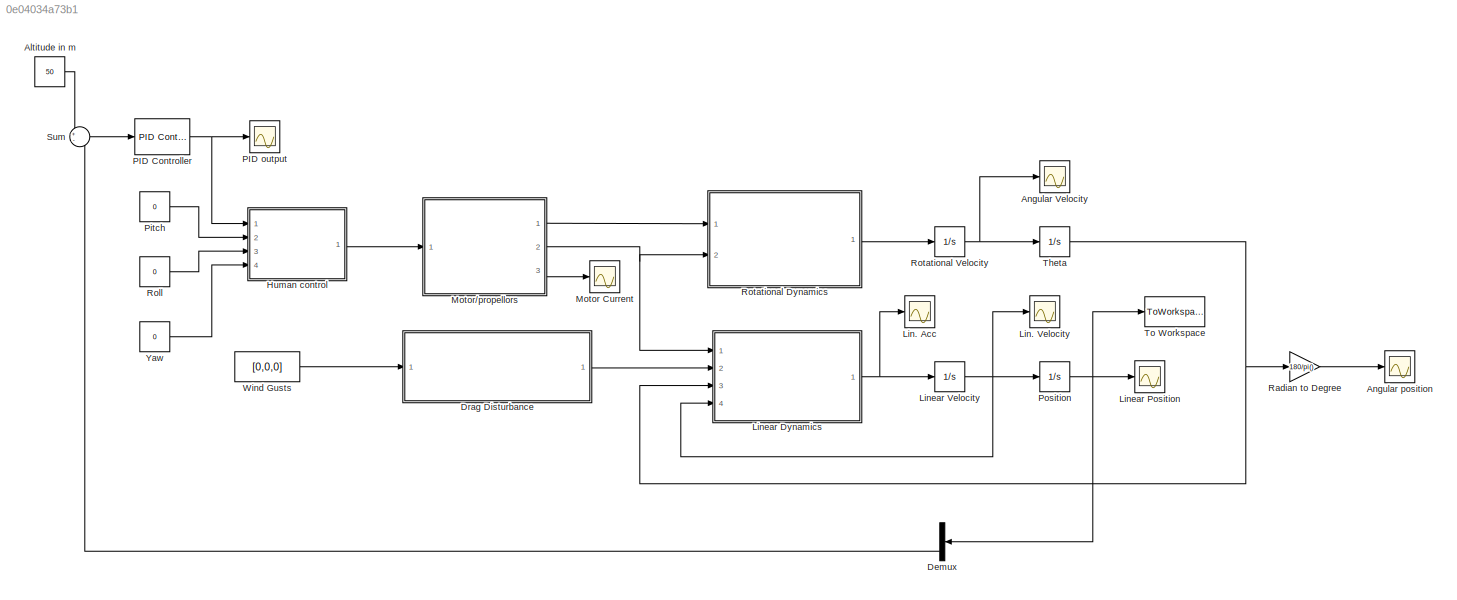
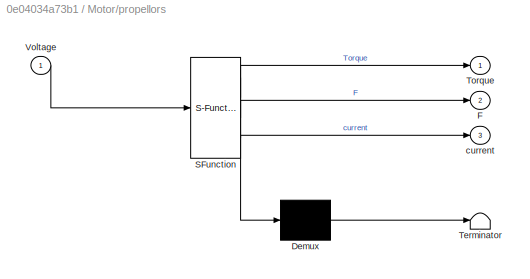
MODEL slx_0e04034a73b1
KIND model
CONFIG AbsTol = 1e-5
CONFIG EnableMultiTasking = off
CONFIG FixedStep = .01
CONFIG MaxStep = auto
CONFIG MinStep = auto
CONFIG RelTol = 1e-5
CONFIG SampleTimeConstraint = Unconstrained
CONFIG Solver = ode23s
CONFIG SolverName = ode23s
CONFIG StartTime = 0.0
CONFIG StopTime = 100
BLOCK [Constant] Altitude in m
  Value = 50
BLOCK [Scope] Angular Velocity
  Floating = off
  NumInputPorts = 1
  Ports = [1]
  ScopeSpecificationString = Simulink.scopes.TimeScopeBlockCfg('CurrentConfiguration', extmgr.ConfigurationSet(extmgr.Configuration('Core','General UI',true),extmgr.Configuration('Core','Source UI',true),extmgr.Configuration('Sources','WiredSimulink',true),extmgr.Configuration('Visuals','Time Domain',true,'SerializedDisplays',{struct('MinYLimReal','-0.0000035','MaxYLimReal','0.0000004','YLabelReal','','MinYLimMag','0.0000000'...<+1405ch>
BLOCK [Scope] Angular position
  Floating = off
  NumInputPorts = 1
  Ports = [1]
  ScopeSpecificationString = Simulink.scopes.TimeScopeBlockCfg('CurrentConfiguration', extmgr.ConfigurationSet(extmgr.Configuration('Core','General UI',true),extmgr.Configuration('Core','Source UI',true),extmgr.Configuration('Sources','WiredSimulink',true,'DataLoggingVariableName','ScopeData3'),extmgr.Configuration('Visuals','Time Domain',true,'SerializedDisplays',{struct('MinYLimReal','-0.02019','MaxYLimReal','0.00224','YLab...<+1419ch>
BLOCK [Demux] Demux
  DisplayOption = bar
  Outputs = 3
  Ports = [1, 3]
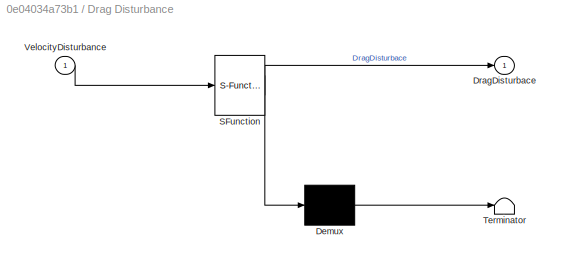
BLOCK [SubSystem] Drag Disturbance
  ErrorFcn = Stateflow.Translate.translate
  PermitHierarchicalResolution = ExplicitOnly
  Ports = [1, 1]
  RequestExecContextInheritance = off
  SFBlockType = MATLAB Function
  TreatAsAtomicUnit = on
BLOCK [Demux] Drag Disturbance/ Demux 
  Outputs = 1
  Ports = [1, 1]
BLOCK [S-Function] Drag Disturbance/ SFunction 
  EnableBusSupport = on
  FunctionName = sf_sfun
  PortCounts = [1 2]
  Ports = [1, 2]
  SFcnIsStateOwnerBlock = off
  SFunctionDeploymentMode = off
  Tag = Stateflow S-Function untitled 4
BLOCK [Terminator] Drag Disturbance/ Terminator 
BLOCK [Outport] Drag Disturbance/DragDisturbace
  IconDisplay = Port number
BLOCK [Inport] Drag Disturbance/VelocityDisturbance
  IconDisplay = Port number
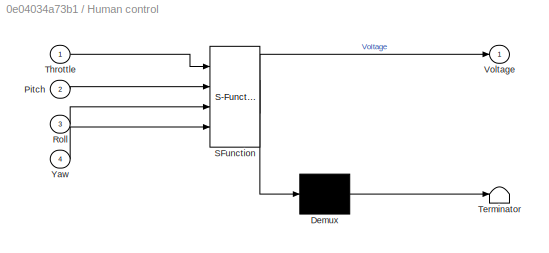
BLOCK [SubSystem] Human control
  ErrorFcn = Stateflow.Translate.translate
  PermitHierarchicalResolution = ExplicitOnly
  Ports = [4, 1]
  RequestExecContextInheritance = off
  SFBlockType = MATLAB Function
  TreatAsAtomicUnit = on
BLOCK [Demux] Human control/ Demux 
  Outputs = 1
  Ports = [1, 1]
BLOCK [S-Function] Human control/ SFunction 
  EnableBusSupport = on
  FunctionName = sf_sfun
  PortCounts = [4 2]
  Ports = [4, 2]
  SFcnIsStateOwnerBlock = off
  SFunctionDeploymentMode = off
  Tag = Stateflow S-Function untitled 5
BLOCK [Terminator] Human control/ Terminator 
BLOCK [Inport] Human control/Pitch
  IconDisplay = Port number
  Port = 2
BLOCK [Inport] Human control/Roll
  IconDisplay = Port number
  Port = 3
BLOCK [Inport] Human control/Throttle
  IconDisplay = Port number
BLOCK [Outport] Human control/Voltage
  IconDisplay = Port number
BLOCK [Inport] Human control/Yaw
  IconDisplay = Port number
  Port = 4
BLOCK [Scope] Lin. Acc 
  Floating = off
  NumInputPorts = 1
  Ports = [1]
  ScopeSpecificationString = Simulink.scopes.TimeScopeBlockCfg('CurrentConfiguration', extmgr.ConfigurationSet(extmgr.Configuration('Core','General UI',true),extmgr.Configuration('Core','Source UI',true),extmgr.Configuration('Sources','WiredSimulink',true,'DataLoggingVariableName','ScopeData5'),extmgr.Configuration('Visuals','Time Domain',true,'SerializedDisplays',{struct('MinYLimReal','-19.06271','MaxYLimReal','12.99887','YL...<+1449ch>
BLOCK [Scope] Lin. Velocity
  Floating = off
  NumInputPorts = 1
  Ports = [1]
  ScopeSpecificationString = Simulink.scopes.TimeScopeBlockCfg('CurrentConfiguration', extmgr.ConfigurationSet(extmgr.Configuration('Core','General UI',true),extmgr.Configuration('Core','Source UI',true),extmgr.Configuration('Sources','WiredSimulink',true,'DataLoggingVariableName','ScopeData1'),extmgr.Configuration('Visuals','Time Domain',true,'SerializedDisplays',{struct('MinYLimReal','-3.25308','MaxYLimReal','27.80287','YLa...<+1447ch>
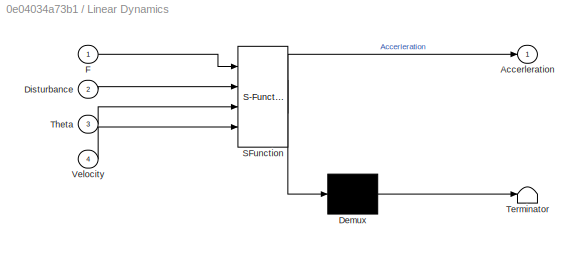
BLOCK [SubSystem] Linear Dynamics
  ErrorFcn = Stateflow.Translate.translate
  PermitHierarchicalResolution = ExplicitOnly
  Ports = [4, 1]
  RequestExecContextInheritance = off
  SFBlockType = MATLAB Function
  TreatAsAtomicUnit = on
BLOCK [Demux] Linear Dynamics/ Demux 
  Outputs = 1
  Ports = [1, 1]
BLOCK [S-Function] Linear Dynamics/ SFunction 
  EnableBusSupport = on
  FunctionName = sf_sfun
  PortCounts = [4 2]
  Ports = [4, 2]
  SFcnIsStateOwnerBlock = off
  SFunctionDeploymentMode = off
  Tag = Stateflow S-Function untitled 3
BLOCK [Terminator] Linear Dynamics/ Terminator 
BLOCK [Outport] Linear Dynamics/Accerleration
  IconDisplay = Port number
BLOCK [Inport] Linear Dynamics/Disturbance
  IconDisplay = Port number
  Port = 2
BLOCK [Inport] Linear Dynamics/F
  IconDisplay = Port number
BLOCK [Inport] Linear Dynamics/Theta
  IconDisplay = Port number
  Port = 3
BLOCK [Inport] Linear Dynamics/Velocity
  IconDisplay = Port number
  Port = 4
BLOCK [Scope] Linear Position
  Floating = off
  NumInputPorts = 1
  Ports = [1]
  ScopeSpecificationString = Simulink.scopes.TimeScopeBlockCfg('CurrentConfiguration', extmgr.ConfigurationSet(extmgr.Configuration('Core','General UI',true),extmgr.Configuration('Core','Source UI',true),extmgr.Configuration('Sources','WiredSimulink',true,'DataLoggingVariableName','ScopeData2'),extmgr.Configuration('Visuals','Time Domain',true,'SerializedDisplays',{struct('MinYLimReal','-11.94635','MaxYLimReal','56.87755','YL...<+1467ch>
BLOCK [Integrator] Linear Velocity
  Ports = [1, 1]
BLOCK [Scope] Motor Current
  Floating = off
  NumInputPorts = 1
  Ports = [1]
  ScopeSpecificationString = Simulink.scopes.TimeScopeBlockCfg('CurrentConfiguration', extmgr.ConfigurationSet(extmgr.Configuration('Core','General UI',true),extmgr.Configuration('Core','Source UI',true),extmgr.Configuration('Sources','WiredSimulink',true,'DataLoggingVariableName','ScopeData4'),extmgr.Configuration('Visuals','Time Domain',true,'SerializedDisplays',{struct('MinYLimReal','7.91109','MaxYLimReal','163.48136','YLa...<+1478ch>
BLOCK [SubSystem] Motor//propellors
  ErrorFcn = Stateflow.Translate.translate
  PermitHierarchicalResolution = ExplicitOnly
  Ports = [1, 3]
  RequestExecContextInheritance = off
  SFBlockType = MATLAB Function
  TreatAsAtomicUnit = on
BLOCK [Demux] Motor//propellors/ Demux 
  Outputs = 1
  Ports = [1, 1]
BLOCK [S-Function] Motor//propellors/ SFunction 
  EnableBusSupport = on
  FunctionName = sf_sfun
  PortCounts = [1 4]
  Ports = [1, 4]
  SFcnIsStateOwnerBlock = off
  SFunctionDeploymentMode = off
  Tag = Stateflow S-Function untitled 2
BLOCK [Terminator] Motor//propellors/ Terminator 
BLOCK [Outport] Motor//propellors/F
  IconDisplay = Port number
  Port = 2
BLOCK [Outport] Motor//propellors/Torque
  IconDisplay = Port number
BLOCK [Inport] Motor//propellors/Voltage
  IconDisplay = Port number
BLOCK [Outport] Motor//propellors/current
  IconDisplay = Port number
  Port = 3
BLOCK [Reference] PID Controller  REF=simulink/Continuous/PID Controller
  Ports = [1, 1]
  SourceBlock = simulink/Continuous/PID Controller
  SourceProductBaseCode = SL
  SourceProductName = Simulink
  SourceType = PID 1dof
BLOCK [Scope] PID output
  Floating = off
  NumInputPorts = 1
  Ports = [1]
  ScopeSpecificationString = Simulink.scopes.TimeScopeBlockCfg('CurrentConfiguration', extmgr.ConfigurationSet(extmgr.Configuration('Core','General UI',true),extmgr.Configuration('Core','Source UI',true),extmgr.Configuration('Sources','WiredSimulink',true,'DataLoggingVariableName','ScopeData6'),extmgr.Configuration('Visuals','Time Domain',true,'SerializedDisplays',{struct('MinYLimReal','-2.15479','MaxYLimReal','18.83544','YLa...<+1432ch>
BLOCK [Constant] Pitch
  Value = 0
BLOCK [Integrator] Position
  Ports = [1, 1]
BLOCK [Gain] Radian to Degree
  Gain = 180/pi()
  OutDataTypeStr = Inherit: Inherit via internal rule
  ParamDataTypeStr = Inherit: Inherit via internal rule
  SaturateOnIntegerOverflow = off
BLOCK [Constant] Roll
  Value = 0
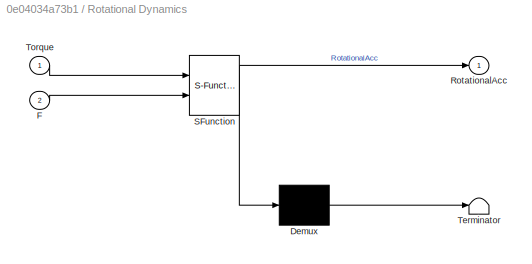
BLOCK [SubSystem] Rotational Dynamics 
  ErrorFcn = Stateflow.Translate.translate
  PermitHierarchicalResolution = ExplicitOnly
  Ports = [2, 1]
  RequestExecContextInheritance = off
  SFBlockType = MATLAB Function
  TreatAsAtomicUnit = on
BLOCK [Demux] Rotational Dynamics / Demux 
  Outputs = 1
  Ports = [1, 1]
BLOCK [S-Function] Rotational Dynamics / SFunction 
  EnableBusSupport = on
  FunctionName = sf_sfun
  PortCounts = [2 2]
  Ports = [2, 2]
  SFcnIsStateOwnerBlock = off
  SFunctionDeploymentMode = off
  Tag = Stateflow S-Function untitled 1
BLOCK [Terminator] Rotational Dynamics / Terminator 
BLOCK [Inport] Rotational Dynamics /F
  IconDisplay = Port number
  Port = 2
BLOCK [Outport] Rotational Dynamics /RotationalAcc
  IconDisplay = Port number
BLOCK [Inport] Rotational Dynamics /Torque
  IconDisplay = Port number
BLOCK [Integrator] Rotational Velocity
  Ports = [1, 1]
BLOCK [Sum] Sum
  IconShape = round
  InputSameDT = off
  Inputs = +-
  OutDataTypeStr = Inherit: Inherit via internal rule
  Ports = [2, 1]
  SaturateOnIntegerOverflow = off
BLOCK [Integrator] Theta
  Ports = [1, 1]
BLOCK [ToWorkspace] To Workspace
  FixptAsFi = on
  MaxDataPoints = inf
  Ports = [1]
  SampleTime = -1
  Save2DSignal = 2-D array (concatenate along first dimension)
  VariableName = PositionInSpace
BLOCK [Constant] Wind Gusts
  Value = [0,0,0]
BLOCK [Constant] Yaw
  Value = 0
LINE Altitude in m:1 -> Sum:1
LINE Demux:3 -> Sum:2
LINE Drag Disturbance:1 -> Linear Dynamics:2
LINE Human control:1 -> Motor//propellors:1
NET Linear Dynamics:1 -> Lin. Acc :1, Linear Velocity:1
NET Linear Velocity:1 -> Lin. Velocity:1, Linear Dynamics:4, Position:1
LINE Motor//propellors:1 -> Rotational Dynamics :1
NET Motor//propellors:2 -> Linear Dynamics:1, Rotational Dynamics :2
LINE Motor//propellors:3 -> Motor Current:1
NET PID Controller:1 -> Human control:1, PID output:1
LINE Pitch:1 -> Human control:2
NET Position:1 -> Demux:1, Linear Position:1, To Workspace:1
LINE Radian to Degree:1 -> Angular position:1
LINE Roll:1 -> Human control:3
LINE Rotational Dynamics :1 -> Rotational Velocity:1
NET Rotational Velocity:1 -> Angular Velocity:1, Theta:1
LINE Sum:1 -> PID Controller:1
NET Theta:1 -> Linear Dynamics:3, Radian to Degree:1
LINE Wind Gusts:1 -> Drag Disturbance:1
LINE Yaw:1 -> Human control:4
note: NET lines group one-source signal fan-out (src -> all destinations, sorted); 1:1 wires keep LINE
CHART Rotational Dynamics
 states=1 transitions=1
  STATE_LABEL 'eML_blk_kernel()'
  STATE_LABEL 'SCRIPT:\nfunction RotationalAcc = fcn( Torque , F)\nMoment = [0 0 0];\nRotationalAcc = [0 0 0];\nInertia = [0.003 0.003 0.007];\nMoment(1) = ((F(3)+F(4))*(.237/2)   -  ((F(1)+F(2))*(.237/2)));\nMoment(2) = ((F(3)+F(2))*(.237/2)   -  ((F(1)+F(4))*(.237/2)));\nMoment(3) = Torque(4) - Torque(1) + Torque(2) - Torque(3);\n\nfor i = 1:3\n     RotationalAcc(i) = Moment(i)/Inertia(i) ;\nend\n\nend\n'
CHART Motor//propellors states=1 transitions=1
  STATE_LABEL 'eML_blk_kernel()'
  STATE_LABEL 'SCRIPT:\nfunction [Torque,F,current] = fcn(Voltage)\n\nRPM = [0 0 0 0];Torque = [0 0 0 0];F = [0 0 0 0];current = [0 0 0 0];\nfor i=1:4\nRPM(i) = -2.6931*(power(Voltage(i),3))   +  1400* Voltage(i);\nct = (2*(power(10,-15))*(power(RPM(i),3)))+   (4*(power(10,-11))*(power(RPM(i),2)))+(3*(power(10,-7))*(RPM(i)))+.1013;\nF(i) = ct * 1.225 * power((RPM(i)/60),2) * power(.2,4);\nTorque(i) = (4*(power(10,-14))*...<+133ch>'
CHART Linear Dynamics states=1 transitions=1
  STATE_LABEL 'eML_blk_kernel()'
  STATE_LABEL 'SCRIPT:\nfunction Accerleration = fcn(F, Disturbance, Theta, Velocity)\n% function Accerleration = fcn( F, Disturbance , Theta, Velocity)\n\nm = .743;\ncd = 1;\nA= [0.0197 0.0197 .0512];\ng= 9.81;\nrho = 1.225;\n\nAccerleration = [0 0 0];Force= [0 0 0]; Fprop = [0 0 0 ];\n\nFprop(1) = (F(1)+F(2)+F(3)+F(4))*sin(Theta(2)) * cos(Theta(1)); \nFprop(2) = (F(1)+F(2)+F(3)+F(4))*sin(Theta(1)) * cos(Theta(2));\nFprop(3)...<+1031ch>'
CHART Drag Disturbance states=1 transitions=1
  STATE_LABEL 'eML_blk_kernel()'
  STATE_LABEL 'SCRIPT:\nfunction DragDisturbace = fcn(VelocityDisturbance)\nA = [0.0197 0.0197 0.0512];\nDragDisturbace = [0 0 0];\nrho = 1.225;\ncd=1;\n\n\nfor i =1:3\n    if VelocityDisturbance(i)<0\n        DragDisturbace(i) = 0.5 * rho * VelocityDisturbance(i)^2  * A(i) *cd;\n    else\n        DragDisturbace(i) = -0.5 * rho * VelocityDisturbance(i)^2  * A(i) *cd;\n\nend\n\n\nend'
CHART Human control states=1 transitions=1
  STATE_LABEL 'eML_blk_kernel()'
  STATE_LABEL 'SCRIPT:\nfunction Voltage = fcn(Throttle , Pitch , Roll , Yaw)\nc=0;\nif (Pitch+Roll+Yaw)/2   >   100 - Throttle\n c = (Pitch+Roll+Yaw)/2 -(100 - Throttle);\nend\n\nif (Pitch+Roll+Yaw)/2   >  Throttle\n    if   c<  (Pitch+Roll+Yaw)/2   -  Throttle\n        c =  (Pitch+Roll+Yaw)/2   -  Throttle;\n    end\nend\n\nPitch = Pitch -(c/3)*2;\nRoll = Roll -(c/3)*2;\nYaw = Yaw -(c/3)*2;\n\nVoltage = [(Throttle -  (Pitch+Ro...<+159ch>'
